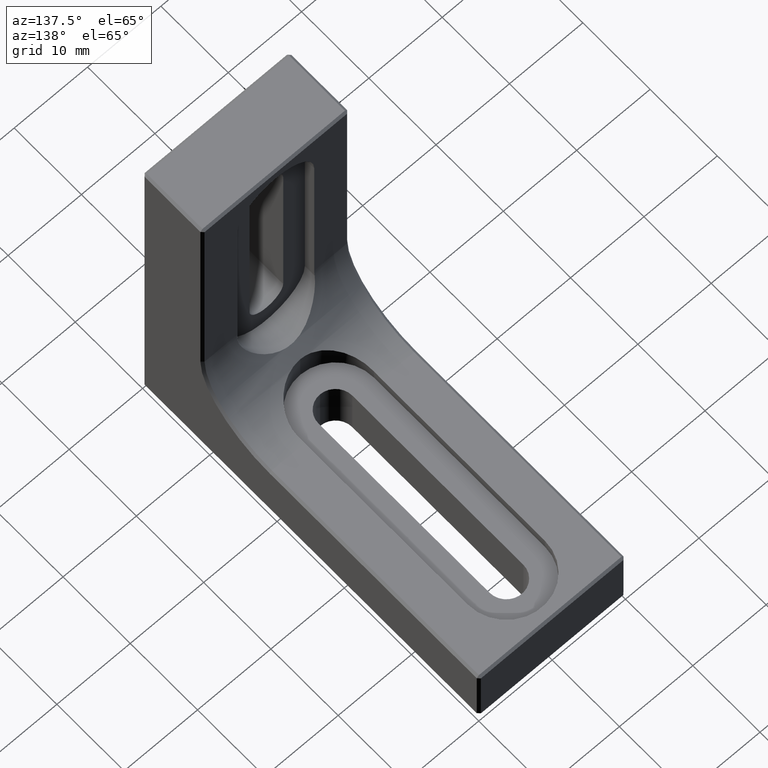
[diagram: clean part render]
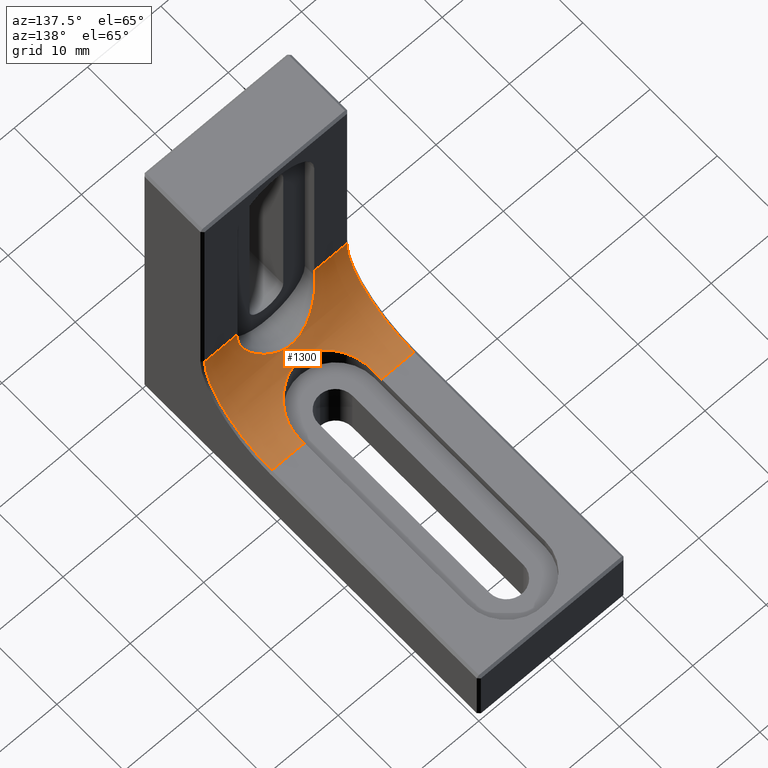
[diagram: same view with one face highlighted and labeled with its STEP entity id]
A machine part, auxiliary view. The second image highlights one B-rep face of the part: STEP entity #1300.
In plain terms, the highlighted cylindrical surface (partial cylindrical patch) has radius 10 mm, axis along (1, 0, 0).
Its self-contained STEP definition (entity closure, byte-faithful):
#3 = CARTESIAN_POINT ( 'NONE',  ( -2.672191038327463186, 10.64027534038258871, 13.25835299342284479 ) ) ;
#5 = CARTESIAN_POINT ( 'NONE',  ( -9.699999999999999289, 18.89999999999999858, 18.89999999999999503 ) ) ;
#9 = CARTESIAN_POINT ( 'NONE',  ( -5.213560347596073008, 17.08121300367412587, 9.060591945350367382 ) ) ;
#11 = EDGE_CURVE ( 'NONE', #1729, #1171, #518, .T. ) ;
#18 = AXIS2_PLACEMENT_3D ( 'NONE', #1557, #557, #435 ) ;
#29 = CARTESIAN_POINT ( 'NONE',  ( 4.963957897736887226, 9.306684020464338403, 16.07196775332707261 ) ) ;
#36 = VERTEX_POINT ( 'NONE', #1462 ) ;
#40 = CARTESIAN_POINT ( 'NONE',  ( -0.3701230410575035434, 11.18252380871231821, 12.54071056947391760 ) ) ;
#52 = ORIENTED_EDGE ( 'NONE', *, *, #1016, .F. ) ;
#58 = CARTESIAN_POINT ( 'NONE',  ( 2.670716258636052665, 10.64086166979518211, 13.25750765038680079 ) ) ;
#59 = ORIENTED_EDGE ( 'NONE', *, *, #976, .F. ) ;
#74 = ORIENTED_EDGE ( 'NONE', *, *, #1185, .F. ) ;
#77 = EDGE_CURVE ( 'NONE', #995, #1153, #91, .T. ) ;
#91 = LINE ( 'NONE', #1080, #1502 ) ;
#106 = CARTESIAN_POINT ( 'NONE',  ( 9.699999999999999289, 8.899999999999996803, 18.89999999999999503 ) ) ;
#109 = CARTESIAN_POINT ( 'NONE',  ( -9.699999999999999289, 8.899999999999996803, 18.89999999999999503 ) ) ;
#151 = CARTESIAN_POINT ( 'NONE',  ( -3.952360376009967258, 14.31845739963871189, 10.00722376672911196 ) ) ;
#159 = CARTESIAN_POINT ( 'NONE',  ( -0.3604538657824164494, 12.53999999999999382, 11.18310943449371209 ) ) ;
#185 = CARTESIAN_POINT ( 'NONE',  ( 3.228630338804974631, 10.39436080026783138, 13.63642823959989414 ) ) ;
#189 = VERTEX_POINT ( 'NONE', #106 ) ;
#190 = CARTESIAN_POINT ( 'NONE',  ( 4.173010293594464848, 14.58687475318874505, 9.872885370859233234 ) ) ;
#199 = CARTESIAN_POINT ( 'NONE',  ( 5.250000000000000000, 17.43077809941229361, 9.001917502831725315 ) ) ;
#204 = CARTESIAN_POINT ( 'NONE',  ( 3.484760413293132686, 10.26509043323107306, 13.84914244447565146 ) ) ;
#209 = CARTESIAN_POINT ( 'NONE',  ( 5.250000000000000000, 17.78999999999999204, 8.961795936890807113 ) ) ;
#210 = ORIENTED_EDGE ( 'NONE', *, *, #11, .T. ) ;
#212 = DIRECTION ( 'NONE',  ( 0.000000000000000000, 0.000000000000000000, -1.000000000000000000 ) ) ;
#226 = CARTESIAN_POINT ( 'NONE',  ( 10.00000000000000000, 18.89999999999999858, 18.89999999999999503 ) ) ;
#227 = AXIS2_PLACEMENT_3D ( 'NONE', #604, #750, #1019 ) ;
#235 = LINE ( 'NONE', #254, #1715 ) ;
#242 = EDGE_CURVE ( 'NONE', #626, #1498, #809, .T. ) ;
#243 = CIRCLE ( 'NONE', #1743, 10.00000000000000000 ) ;
#254 = CARTESIAN_POINT ( 'NONE',  ( -10.00000000000000000, 8.899999999999996803, 18.89999999999999503 ) ) ;
#278 = EDGE_CURVE ( 'NONE', #722, #626, #296, .T. ) ;
#286 = CARTESIAN_POINT ( 'NONE',  ( -3.226056135732390029, 13.63437267088463223, 10.39562660515902159 ) ) ;
#295 = CARTESIAN_POINT ( 'NONE',  ( -1.235983853552743872, 12.68447640159341105, 11.06613859803305111 ) ) ;
#296 = LINE ( 'NONE', #828, #1054 ) ;
#304 = AXIS2_PLACEMENT_3D ( 'NONE', #1517, #446, #1151 ) ;
#316 = CARTESIAN_POINT ( 'NONE',  ( 5.250000000000000000, 9.001965022856888154, 17.43035263661311518 ) ) ;
#325 = CARTESIAN_POINT ( 'NONE',  ( -1.747763697830504892, 10.94781152421939296, 12.83641368066164645 ) ) ;
#327 = LINE ( 'NONE', #1442, #1705 ) ;
#336 = CARTESIAN_POINT ( 'NONE',  ( 0.3507640641892922906, 11.17591410506881644, 12.54869823763985437 ) ) ;
#344 = CARTESIAN_POINT ( 'NONE',  ( 5.066420747847504735, 9.215257126453705538, 16.40295507755056548 ) ) ;
#347 = CARTESIAN_POINT ( 'NONE',  ( 5.250000000000000000, 8.900000000000000355, 18.89999999999999503 ) ) ;
#350 = CARTESIAN_POINT ( 'NONE',  ( 0.8893868767433187328, 12.61288360488713600, 11.12348070391345090 ) ) ;
#363 = CARTESIAN_POINT ( 'NONE',  ( 9.699999999999999289, 18.89999999999999858, 18.89999999999999503 ) ) ;
#370 = CARTESIAN_POINT ( 'NONE',  ( 5.250000000000000000, 18.89999999999999858, 8.899999999999996803 ) ) ;
#394 = CARTESIAN_POINT ( 'NONE',  ( -5.249999999999999112, 8.900000000000000355, 18.89999999999999503 ) ) ;
#410 = AXIS2_PLACEMENT_3D ( 'NONE', #5, #569, #1569 ) ;
#425 = CARTESIAN_POINT ( 'NONE',  ( -4.166406124087693286, 14.57796339219343018, 9.877060341399927168 ) ) ;
#431 = CARTESIAN_POINT ( 'NONE',  ( -1.740465348182179239, 12.83383473549264053, 10.94978028432860739 ) ) ;
#435 = DIRECTION ( 'NONE',  ( 1.734723475976806848E-16, 1.000000000000000000, 6.938893903907226800E-15 ) ) ;
#445 = VERTEX_POINT ( 'NONE', #471 ) ;
#446 = DIRECTION ( 'NONE',  ( 1.000000000000000000, -1.365923996832131609E-16, 3.032960542342103244E-32 ) ) ;
#452 = CIRCLE ( 'NONE', #304, 10.00000000000000000 ) ;
#455 = CARTESIAN_POINT ( 'NONE',  ( 3.955790791953293528, 10.00524997531984894, 14.32220060826958985 ) ) ;
#471 = CARTESIAN_POINT ( 'NONE',  ( -4.248821501109449253E-15, 12.53999999999999382, 11.18310943449370676 ) ) ;
#473 = CARTESIAN_POINT ( 'NONE',  ( 5.109402245554638178, 9.173499938054625602, 16.57072114447057842 ) ) ;
#475 = DIRECTION ( 'NONE',  ( -1.000000000000000000, 0.000000000000000000, 0.000000000000000000 ) ) ;
#483 = CARTESIAN_POINT ( 'NONE',  ( -2.377305028365934714, 10.75444678515558472, 13.09676243967636111 ) ) ;
#518 = CIRCLE ( 'NONE', #227, 10.00000000000000000 ) ;
#529 = DIRECTION ( 'NONE',  ( 0.000000000000000000, 0.000000000000000000, -1.000000000000000000 ) ) ;
#530 = ORIENTED_EDGE ( 'NONE', *, *, #850, .F. ) ;
#550 = DIRECTION ( 'NONE',  ( 1.734723475976807341E-16, 3.469446951953614978E-15, 1.000000000000000000 ) ) ;
#557 = DIRECTION ( 'NONE',  ( -1.000000000000000000, 1.365923996832131609E-16, -3.032960542342103244E-32 ) ) ;
#558 = CARTESIAN_POINT ( 'NONE',  ( -4.544542442879876631, 9.628808358884523244, 15.13990966254448622 ) ) ;
#562 = CARTESIAN_POINT ( 'NONE',  ( 5.250000000000000000, 17.78999999999999204, 8.961795936890807113 ) ) ;
#569 = DIRECTION ( 'NONE',  ( -1.000000000000000000, -0.000000000000000000, -0.000000000000000000 ) ) ;
#571 = CARTESIAN_POINT ( 'NONE',  ( -4.703934743447622857, 15.43364178253515817, 9.514130167969499396 ) ) ;
#575 = CARTESIAN_POINT ( 'NONE',  ( -5.213645496509752952, 9.060453447090528911, 17.08203940653157815 ) ) ;
#584 = EDGE_CURVE ( 'NONE', #189, #1153, #243, .T. ) ;
#604 = CARTESIAN_POINT ( 'NONE',  ( 5.250000000000000000, 18.89999999999999858, 18.89999999999999503 ) ) ;
#615 = CARTESIAN_POINT ( 'NONE',  ( 2.370155630930351975, 10.75719919098064814, 13.09287124451733497 ) ) ;
#626 = VERTEX_POINT ( 'NONE', #910 ) ;
#633 = CARTESIAN_POINT ( 'NONE',  ( 5.250000000000000000, 8.961795936890810665, 17.78999999999999204 ) ) ;
#637 = CARTESIAN_POINT ( 'NONE',  ( 2.676267384666858096, 13.26081803295245543, 10.63860089917800344 ) ) ;
#666 = EDGE_LOOP ( 'NONE', ( #1692, #946, #59, #1812, #805, #210, #74, #1559, #1712, #52, #530, #754, #728 ) ) ;
#692 = CARTESIAN_POINT ( 'NONE',  ( -5.249999999999999112, 18.89999999999999858, 18.89999999999999503 ) ) ;
#702 = CARTESIAN_POINT ( 'NONE',  ( -5.250000000000001776, 17.43082836675449698, 9.001911888462222677 ) ) ;
#705 = CARTESIAN_POINT ( 'NONE',  ( -3.487282149246071494, 10.26373266854764310, 13.85155291283136414 ) ) ;
#712 = CARTESIAN_POINT ( 'NONE',  ( -5.249999999999999112, 9.001864487370539791, 17.43125276470222573 ) ) ;
#721 = CARTESIAN_POINT ( 'NONE',  ( -4.248821501109449253E-15, 12.53999999999999382, 11.18310943449370676 ) ) ;
#722 = VERTEX_POINT ( 'NONE', #1145 ) ;
#728 = ORIENTED_EDGE ( 'NONE', *, *, #242, .F. ) ;
#732 = CARTESIAN_POINT ( 'NONE',  ( 4.904088555837988750, 9.356634183246512748, 15.90803365237660927 ) ) ;
#734 = VERTEX_POINT ( 'NONE', #562 ) ;
#740 = B_SPLINE_CURVE_WITH_KNOTS ( 'NONE', 3,
 ( #1408, #702, #9, #1295, #1129, #571, #1688, #425, #151, #1554, #286, #1417, #1136, #1695, #431, #996, #295, #851, #159, #721 ),
 .UNSPECIFIED., .F., .F.,
 ( 4, 2, 2, 2, 2, 2, 2, 2, 2, 4 ),
 ( 0.000000000000000000, 0.001067081873593736735, 0.002134163747187473471, 0.003201245620781210423, 0.004268327494374946941, 0.005335409367968683460, 0.006402491241562420846, 0.006936032178359289972, 0.007469573115156160834, 0.008536654988749899087 ),
 .UNSPECIFIED. ) ;
#744 = EDGE_CURVE ( 'NONE', #1498, #445, #740, .T. ) ;
#746 = CARTESIAN_POINT ( 'NONE',  ( 4.904889175381513589, 15.91013797596644430, 9.355977470405367313 ) ) ;
#750 = DIRECTION ( 'NONE',  ( -1.000000000000000000, -0.000000000000000000, 1.365923996832131609E-16 ) ) ;
#751 = CARTESIAN_POINT ( 'NONE',  ( 9.699999999999999289, 18.89999999999999858, 8.899999999999996803 ) ) ;
#753 = CARTESIAN_POINT ( 'NONE',  ( 5.066846646961527867, 16.40453753666155023, 9.214852709614653747 ) ) ;
#754 = ORIENTED_EDGE ( 'NONE', *, *, #744, .F. ) ;
#757 = CARTESIAN_POINT ( 'NONE',  ( -1.908488348810798874, 10.90240334389523547, 12.89622214221618890 ) ) ;
#762 = CARTESIAN_POINT ( 'NONE',  ( -4.248821501109449253E-15, 12.53999999999999382, 11.18310943449370676 ) ) ;
#805 = ORIENTED_EDGE ( 'NONE', *, *, #1541, .T. ) ;
#809 = CIRCLE ( 'NONE', #18, 10.00000000000000178 ) ;
#820 = CARTESIAN_POINT ( 'NONE',  ( -5.074810364845963484, 9.211029933203803921, 16.40089693469758814 ) ) ;
#828 = CARTESIAN_POINT ( 'NONE',  ( 10.00000000000000000, 18.89999999999999858, 8.899999999999996803 ) ) ;
#850 = EDGE_CURVE ( 'NONE', #445, #734, #1580, .T. ) ;
#851 = CARTESIAN_POINT ( 'NONE',  ( -0.7143202964442149083, 12.57671353994371799, 11.15245067041355043 ) ) ;
#872 = CARTESIAN_POINT ( 'NONE',  ( 1.737466988224166897, 10.95586340375538725, 12.82392864275549549 ) ) ;
#878 = CARTESIAN_POINT ( 'NONE',  ( 4.964622295396489804, 16.07390948805221242, 9.306115314395922766 ) ) ;
#882 = CARTESIAN_POINT ( 'NONE',  ( 4.704280620743318764, 9.513891222336273046, 15.43420471397640092 ) ) ;
#891 = CARTESIAN_POINT ( 'NONE',  ( -0.7234607948053241033, 11.15139232986732942, 12.57800133324279912 ) ) ;
#907 = CARTESIAN_POINT ( 'NONE',  ( 5.109728669036098125, 16.57211867492733148, 9.173168939162300362 ) ) ;
#910 = CARTESIAN_POINT ( 'NONE',  ( -5.249999999999999112, 18.89999999999999858, 8.899999999999996803 ) ) ;
#915 = VERTEX_POINT ( 'NONE', #109 ) ;
#946 = ORIENTED_EDGE ( 'NONE', *, *, #1077, .T. ) ;
#976 = EDGE_CURVE ( 'NONE', #1291, #915, #235, .T. ) ;
#995 = VERTEX_POINT ( 'NONE', #370 ) ;
#996 = CARTESIAN_POINT ( 'NONE',  ( -1.408385185462072142, 12.72944223166030753, 11.03052915556906655 ) ) ;
#998 = CIRCLE ( 'NONE', #1418, 9.999999999999998224 ) ;
#1016 = EDGE_CURVE ( 'NONE', #734, #995, #452, .T. ) ;
#1018 = CARTESIAN_POINT ( 'NONE',  ( -1.244356091499859707, 11.06451779612827302, 12.68651743183911229 ) ) ;
#1019 = DIRECTION ( 'NONE',  ( -1.734723475976807094E-16, -2.775557561562891351E-15, -1.000000000000000000 ) ) ;
#1022 = CARTESIAN_POINT ( 'NONE',  ( 4.545238826605109139, 15.14144751490056073, 9.628261698091311160 ) ) ;
#1026 = CARTESIAN_POINT ( 'NONE',  ( 0.1697313144757018610, 11.18338994951034415, 12.53965963687828555 ) ) ;
#1046 = CARTESIAN_POINT ( 'NONE',  ( 4.170618770675712739, 9.874384307652682935, 14.58372065089522174 ) ) ;
#1054 = VECTOR ( 'NONE', #1402, 1000.000000000000000 ) ;
#1063 = CARTESIAN_POINT ( 'NONE',  ( 3.958656377180655994, 14.32550806444590741, 10.00355204569191692 ) ) ;
#1077 = EDGE_CURVE ( 'NONE', #722, #915, #1297, .T. ) ;
#1080 = CARTESIAN_POINT ( 'NONE',  ( 10.00000000000000000, 18.89999999999999858, 8.899999999999996803 ) ) ;
#1087 = DIRECTION ( 'NONE',  ( 1.000000000000000000, -0.000000000000000000, -0.000000000000000000 ) ) ;
#1096 = DIRECTION ( 'NONE',  ( 1.000000000000000000, 0.000000000000000000, 0.000000000000000000 ) ) ;
#1112 = CARTESIAN_POINT ( 'NONE',  ( -3.230492194480680368, 10.39347252665368870, 13.63784998838714024 ) ) ;
#1129 = CARTESIAN_POINT ( 'NONE',  ( -4.969846555635516694, 16.06371748167759606, 9.304913065955839002 ) ) ;
#1136 = CARTESIAN_POINT ( 'NONE',  ( -2.371271029064391023, 13.09367621644718938, 10.75665171352052774 ) ) ;
#1139 = CARTESIAN_POINT ( 'NONE',  ( -4.970497689936911989, 9.304348115874208958, 16.06566744138935476 ) ) ;
#1145 = CARTESIAN_POINT ( 'NONE',  ( -9.699999999999999289, 18.89999999999999858, 8.899999999999996803 ) ) ;
#1147 = EDGE_CURVE ( 'NONE', #1291, #36, #998, .T. ) ;
#1151 = DIRECTION ( 'NONE',  ( -1.734723475976807094E-16, -1.000000000000000000, 0.000000000000000000 ) ) ;
#1153 = VERTEX_POINT ( 'NONE', #751 ) ;
#1164 = CARTESIAN_POINT ( 'NONE',  ( 0.7146393016400544029, 12.58582118087442048, 11.14553673976735126 ) ) ;
#1171 = VERTEX_POINT ( 'NONE', #347 ) ;
#1185 = EDGE_CURVE ( 'NONE', #189, #1171, #327, .T. ) ;
#1200 = CARTESIAN_POINT ( 'NONE',  ( 3.232974538264423270, 13.63984674502324346, 10.39224611929246755 ) ) ;
#1218 = CYLINDRICAL_SURFACE ( 'NONE', #1447, 10.00000000000000000 ) ;
#1220 = DIRECTION ( 'NONE',  ( -1.000000000000000000, 0.000000000000000000, 0.000000000000000000 ) ) ;
#1253 = CARTESIAN_POINT ( 'NONE',  ( -4.168825451724384124, 9.875545422714104404, 14.58114675236359936 ) ) ;
#1255 = DIRECTION ( 'NONE',  ( 1.000000000000000000, -0.000000000000000000, -1.365923996832131609E-16 ) ) ;
#1291 = VERTEX_POINT ( 'NONE', #394 ) ;
#1295 = CARTESIAN_POINT ( 'NONE',  ( -5.074402507045076227, 16.39930603629648331, 9.211425971599071616 ) ) ;
#1297 = CIRCLE ( 'NONE', #410, 10.00000000000000000 ) ;
#1300 = ADVANCED_FACE ( 'NONE', ( #1765 ), #1218, .F. ) ;
#1313 = CARTESIAN_POINT ( 'NONE',  ( 1.744832774333701098, 12.82654527432528546, 10.95385710950409042 ) ) ;
#1323 = CARTESIAN_POINT ( 'NONE',  ( 5.213559585111232408, 17.08180198742483213, 9.060525837939103155 ) ) ;
#1328 = CARTESIAN_POINT ( 'NONE',  ( 4.543660556338230627, 9.629370886724037959, 15.13869146578816505 ) ) ;
#1333 = CARTESIAN_POINT ( 'NONE',  ( 2.376256812780465744, 13.09599022328178997, 10.75497024850377059 ) ) ;
#1356 = CARTESIAN_POINT ( 'NONE',  ( 5.250000000000000000, 8.961795936890810665, 17.78999999999999204 ) ) ;
#1392 = CARTESIAN_POINT ( 'NONE',  ( -4.705167870490697624, 9.513212225248484089, 15.43615944277124896 ) ) ;
#1402 = DIRECTION ( 'NONE',  ( 1.000000000000000000, -0.000000000000000000, -0.000000000000000000 ) ) ;
#1408 = CARTESIAN_POINT ( 'NONE',  ( -5.249999999999999112, 17.78999999999999204, 8.961795936890807113 ) ) ;
#1417 = CARTESIAN_POINT ( 'NONE',  ( -2.666716695747047616, 13.25510212308909175, 10.64249880610045018 ) ) ;
#1418 = AXIS2_PLACEMENT_3D ( 'NONE', #692, #1255, #550 ) ;
#1440 = CARTESIAN_POINT ( 'NONE',  ( -1.416382831365101680, 11.02876977221859711, 12.73168456483738176 ) ) ;
#1442 = CARTESIAN_POINT ( 'NONE',  ( -10.00000000000000000, 8.899999999999996803, 18.89999999999999503 ) ) ;
#1447 = AXIS2_PLACEMENT_3D ( 'NONE', #226, #1096, #529 ) ;
#1453 = CARTESIAN_POINT ( 'NONE',  ( 1.407033092257569340, 12.71979974581175732, 11.03784606290712134 ) ) ;
#1462 = CARTESIAN_POINT ( 'NONE',  ( -5.249999999999999112, 8.961795936890810665, 17.78999999999999204 ) ) ;
#1466 = CARTESIAN_POINT ( 'NONE',  ( 0.1798010198548442573, 12.53999999999999204, 11.18310943449371564 ) ) ;
#1469 = CARTESIAN_POINT ( 'NONE',  ( 0.8805241126990009937, 11.12471349161460310, 12.61136127585415245 ) ) ;
#1473 = CARTESIAN_POINT ( 'NONE',  ( 0.3604964183810824840, 12.54936751477282897, 11.17536268477480732 ) ) ;
#1481 = CARTESIAN_POINT ( 'NONE',  ( 4.705514456117462885, 15.43672357935097494, 9.512972765201535452 ) ) ;
#1498 = VERTEX_POINT ( 'NONE', #1691 ) ;
#1502 = VECTOR ( 'NONE', #1087, 1000.000000000000000 ) ;
#1517 = CARTESIAN_POINT ( 'NONE',  ( 5.250000000000000000, 18.89999999999999858, 18.89999999999999503 ) ) ;
#1541 = EDGE_CURVE ( 'NONE', #36, #1729, #1653, .T. ) ;
#1550 = CARTESIAN_POINT ( 'NONE',  ( -5.249999999999999112, 8.961795936890810665, 17.78999999999999204 ) ) ;
#1554 = CARTESIAN_POINT ( 'NONE',  ( -3.483473878187082651, 13.84815140981226023, 10.26571788995918766 ) ) ;
#1557 = CARTESIAN_POINT ( 'NONE',  ( -5.249999999999999112, 18.89999999999999858, 18.89999999999999503 ) ) ;
#1559 = ORIENTED_EDGE ( 'NONE', *, *, #584, .T. ) ;
#1569 = DIRECTION ( 'NONE',  ( 0.000000000000000000, 0.000000000000000000, -1.000000000000000000 ) ) ;
#1577 = CARTESIAN_POINT ( 'NONE',  ( 0.7054921211937199566, 11.14656144969701757, 12.58456433525686968 ) ) ;
#1580 = B_SPLINE_CURVE_WITH_KNOTS ( 'NONE', 3,
 ( #762, #1466, #1473, #1164, #350, #1453, #1313, #1333, #637, #1200, #1759, #1063, #190, #1022, #1481, #746, #878, #753, #907, #1323, #199, #209 ),
 .UNSPECIFIED., .F., .F.,
 ( 4, 2, 2, 2, 2, 2, 2, 2, 2, 2, 4 ),
 ( 0.008536654988749899087, 0.009068935059388936668, 0.009601215130027974248, 0.01066577527130604768, 0.01173033541258412110, 0.01279489555386219279, 0.01385945569514026796, 0.01492401583641834138, 0.01545629590705738590, 0.01598857597769642869, 0.01705313611897451426 ),
 .UNSPECIFIED. ) ;
#1594 = CARTESIAN_POINT ( 'NONE',  ( 5.213474148573832068, 9.060664536792618406, 17.08097514864993016 ) ) ;
#1611 = CARTESIAN_POINT ( 'NONE',  ( 1.399002937324035356, 11.03962430346590295, 12.71754716390307038 ) ) ;
#1653 = B_SPLINE_CURVE_WITH_KNOTS ( 'NONE', 3,
 ( #1550, #712, #575, #820, #1139, #1392, #558, #1253, #1808, #705, #1112, #3, #483, #757, #325, #1440, #1018, #891, #40, #1026, #336, #1577, #1469, #1611, #872, #615, #58, #185, #204, #455, #1046, #1328, #882, #732, #29, #344, #473, #1594, #316, #633 ),
 .UNSPECIFIED., .F., .F.,
 ( 4, 2, 2, 2, 2, 2, 2, 2, 2, 2, 2, 2, 2, 2, 2, 2, 2, 2, 2, 4 ),
 ( 0.000000000000000000, 0.001065821007435914297, 0.002131642014871828594, 0.003197463022307733566, 0.004263284029743638973, 0.005329105037179543078, 0.006394926044615448918, 0.006927836548333400971, 0.007460747052051353023, 0.008526568059487258863, 0.009059478563205212651, 0.009592389066923166438, 0.01065821007435907228, 0.01172403108179497812, 0.01278985208923088569, 0.01385567309666679327, 0.01492149410410269737, 0.01545440460782064943, 0.01598731511153859974, 0.01705313611897451426 ),
 .UNSPECIFIED. ) ;
#1688 = CARTESIAN_POINT ( 'NONE',  ( -4.542959428571519354, 15.13714516207951633, 9.629921036436824622 ) ) ;
#1691 = CARTESIAN_POINT ( 'NONE',  ( -5.249999999999999112, 17.78999999999999204, 8.961795936890807113 ) ) ;
#1692 = ORIENTED_EDGE ( 'NONE', *, *, #278, .F. ) ;
#1695 = CARTESIAN_POINT ( 'NONE',  ( -1.901518311451626309, 12.89350135765104710, 10.90444790161117972 ) ) ;
#1705 = VECTOR ( 'NONE', #475, 1000.000000000000000 ) ;
#1712 = ORIENTED_EDGE ( 'NONE', *, *, #77, .F. ) ;
#1715 = VECTOR ( 'NONE', #1220, 1000.000000000000000 ) ;
#1729 = VERTEX_POINT ( 'NONE', #1356 ) ;
#1743 = AXIS2_PLACEMENT_3D ( 'NONE', #363, #1761, #212 ) ;
#1759 = CARTESIAN_POINT ( 'NONE',  ( 3.488578763937445704, 13.85255376012356443, 10.26309956479067154 ) ) ;
#1761 = DIRECTION ( 'NONE',  ( 1.000000000000000000, -0.000000000000000000, -0.000000000000000000 ) ) ;
#1765 = FACE_OUTER_BOUND ( 'NONE', #666, .T. ) ;
#1808 = CARTESIAN_POINT ( 'NONE',  ( -3.955197591953591552, 10.00554373961099230, 14.32172748252362027 ) ) ;
#1812 = ORIENTED_EDGE ( 'NONE', *, *, #1147, .T. ) ;